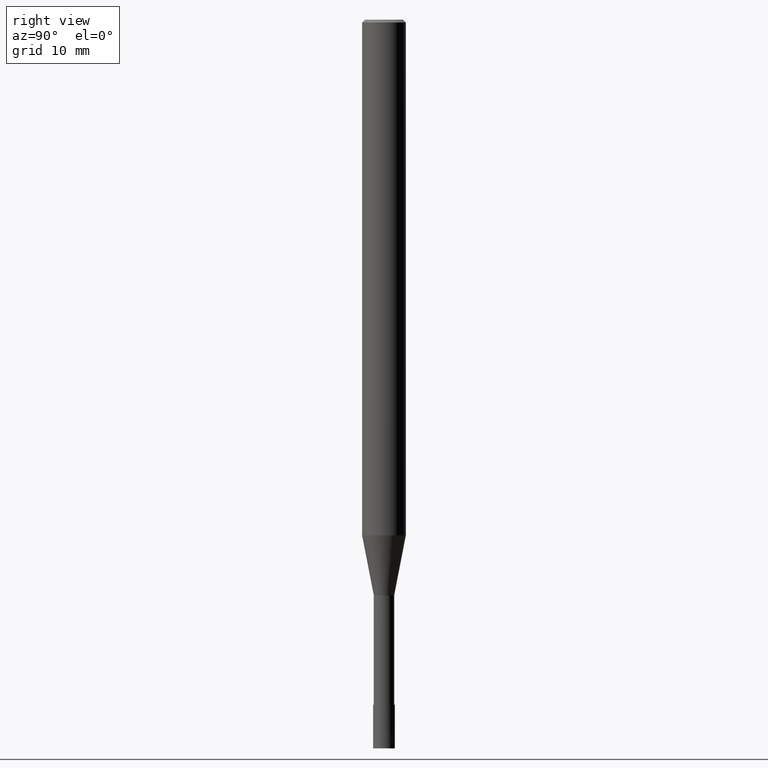
[diagram: clean part render]
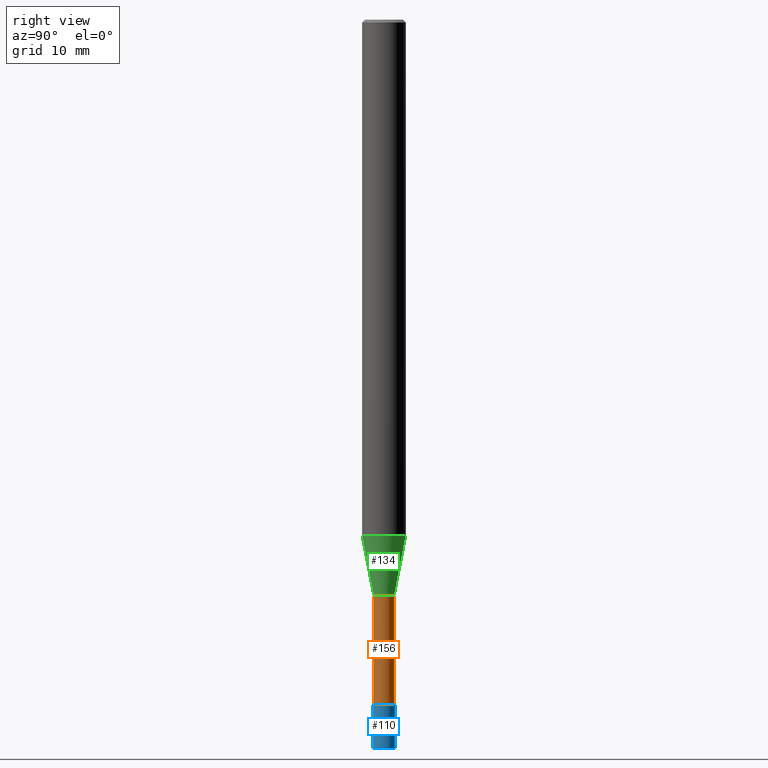
[diagram: same view with three faces highlighted in distinct colors, each labeled with its STEP entity id]
A machine part, right view with three faces highlighted in distinct colors.
Their STEP definitions:

[orange] entity #156 — the highlighted cylindrical surface (edge-blend (fillet) strip) has radius 1.4 mm, axis along (-0, -0, 1).
#96=VERTEX_POINT('',#234);
#122=EDGE_CURVE('',#96,#194,#265,.T.);
#138=EDGE_CURVE('',#96,#140,#284,.T.);
#140=VERTEX_POINT('',#286);
#148=EDGE_CURVE('',#160,#140,#295,.T.);
#156=ADVANCED_FACE('',(#303),#304,.T.);
#160=VERTEX_POINT('',#308);
#190=EDGE_CURVE('',#194,#160,#342,.T.);
#194=VERTEX_POINT('',#346);
#234=CARTESIAN_POINT('',(0.0,1.39995,-79.0));
#265=LINE('',#415,#416);
#284=CIRCLE('',#440,1.39995);
#286=CARTESIAN_POINT('',(1.71438766503364E-016,-1.39995,-79.0));
#295=LINE('',#454,#455);
#303=FACE_OUTER_BOUND('',#465,.T.);
#304=CYLINDRICAL_SURFACE('',#466,1.39995);
#308=CARTESIAN_POINT('',(1.71438766503364E-016,-1.39995,-94.0));
#342=CIRCLE('',#517,1.39995);
#346=CARTESIAN_POINT('',(0.0,1.39995,-94.0));
#415=CARTESIAN_POINT('',(-1.71438766503364E-016,1.39995,-86.5));
#416=VECTOR('',#593,1.0);
#440=AXIS2_PLACEMENT_3D('',#630,#631,#632);
#454=CARTESIAN_POINT('',(1.71438766503364E-016,-1.39995,-86.5));
#455=VECTOR('',#640,1.0);
#465=EDGE_LOOP('',(#648,#649,#650,#651));
#466=AXIS2_PLACEMENT_3D('',#652,#653,#654);
#517=AXIS2_PLACEMENT_3D('',#692,#693,#694);
#593=DIRECTION('',(0.0,0.0,-1.0));
#630=CARTESIAN_POINT('',(0.0,0.0,-79.0));
#631=DIRECTION('',(0.0,0.0,-1.0));
#632=DIRECTION('',(0.0,1.0,0.0));
#640=DIRECTION('',(-0.0,-0.0,1.0));
#648=ORIENTED_EDGE('',*,*,#122,.F.);
#649=ORIENTED_EDGE('',*,*,#138,.T.);
#650=ORIENTED_EDGE('',*,*,#148,.F.);
#651=ORIENTED_EDGE('',*,*,#190,.F.);
#652=CARTESIAN_POINT('',(0.0,0.0,-86.5));
#653=DIRECTION('',(-0.0,-0.0,1.0));
#654=DIRECTION('',(0.0,1.0,0.0));
#692=CARTESIAN_POINT('',(0.0,0.0,-94.0));
#693=DIRECTION('',(0.0,0.0,-1.0));
#694=DIRECTION('',(0.0,1.0,0.0));

[blue] entity #110 — the highlighted conical surface has half-angle 0.001 deg.
#110=ADVANCED_FACE('',(#251),#252,.T.);
#116=VERTEX_POINT('',#259);
#118=VERTEX_POINT('',#261);
#126=EDGE_CURVE('',#150,#116,#269,.T.);
#128=EDGE_CURVE('',#168,#118,#271,.T.);
#146=EDGE_CURVE('',#168,#150,#293,.T.);
#150=VERTEX_POINT('',#297);
#168=VERTEX_POINT('',#316);
#170=EDGE_CURVE('',#116,#118,#318,.T.);
#251=FACE_OUTER_BOUND('',#399,.T.);
#252=CONICAL_SURFACE('',#400,1.49995,1.66666666651216E-005);
#259=CARTESIAN_POINT('',(1.83690953073357E-016,-1.5,-100.0));
#261=CARTESIAN_POINT('',(1.83678707009818E-016,-1.4999,-94.0));
#269=CIRCLE('',#422,1.5);
#271=CIRCLE('',#425,1.4999);
#293=LINE('',#450,#451);
#297=CARTESIAN_POINT('',(0.0,1.5,-100.0));
#316=CARTESIAN_POINT('',(0.0,1.4999,-94.0));
#318=LINE('',#483,#484);
#399=EDGE_LOOP('',(#575,#576,#577,#578));
#400=AXIS2_PLACEMENT_3D('',#579,#580,#581);
#422=AXIS2_PLACEMENT_3D('',#597,#598,#599);
#425=AXIS2_PLACEMENT_3D('',#600,#601,#602);
#450=CARTESIAN_POINT('',(-1.83684830041587E-016,1.49995,-97.0));
#451=VECTOR('',#639,1.0);
#483=CARTESIAN_POINT('',(1.83684830041587E-016,-1.49995,-97.0));
#484=VECTOR('',#660,1.0);
#575=ORIENTED_EDGE('',*,*,#146,.F.);
#576=ORIENTED_EDGE('',*,*,#128,.T.);
#577=ORIENTED_EDGE('',*,*,#170,.F.);
#578=ORIENTED_EDGE('',*,*,#126,.F.);
#579=CARTESIAN_POINT('',(0.0,0.0,-97.0));
#580=DIRECTION('',(0.0,-0.0,-1.0));
#581=DIRECTION('',(0.0,1.0,0.0));
#597=CARTESIAN_POINT('',(0.0,0.0,-100.0));
#598=DIRECTION('',(0.0,0.0,-1.0));
#599=DIRECTION('',(0.0,1.0,0.0));
#600=CARTESIAN_POINT('',(0.0,0.0,-94.0));
#601=DIRECTION('',(0.0,0.0,-1.0));
#602=DIRECTION('',(0.0,1.0,0.0));
#639=DIRECTION('',(-2.04101058942026E-021,1.666666666435E-005,-0.999999999861111));
#660=DIRECTION('',(-2.04101058942026E-021,1.666666666435E-005,0.999999999861111));

[green] entity #134 — the highlighted conical surface has half-angle 11 deg.
#96=VERTEX_POINT('',#234);
#112=VERTEX_POINT('',#254);
#120=EDGE_CURVE('',#204,#112,#263,.T.);
#134=ADVANCED_FACE('',(#278),#279,.T.);
#138=EDGE_CURVE('',#96,#140,#284,.T.);
#140=VERTEX_POINT('',#286);
#166=EDGE_CURVE('',#204,#96,#314,.T.);
#178=EDGE_CURVE('',#140,#112,#327,.T.);
#204=VERTEX_POINT('',#357);
#234=CARTESIAN_POINT('',(0.0,1.39995,-79.0));
#254=CARTESIAN_POINT('',(3.67375783114944E-016,-2.99995,-70.769));
#263=CIRCLE('',#412,2.99995);
#278=FACE_OUTER_BOUND('',#433,.T.);
#279=CONICAL_SURFACE('',#434,2.19995,0.191992735564386);
#284=CIRCLE('',#440,1.39995);
#286=CARTESIAN_POINT('',(1.71438766503364E-016,-1.39995,-79.0));
#314=LINE('',#477,#478);
#327=LINE('',#495,#496);
#357=CARTESIAN_POINT('',(0.0,2.99995,-70.769));
#412=AXIS2_PLACEMENT_3D('',#590,#591,#592);
#433=EDGE_LOOP('',(#615,#616,#617,#618));
#434=AXIS2_PLACEMENT_3D('',#619,#620,#621);
#440=AXIS2_PLACEMENT_3D('',#630,#631,#632);
#477=CARTESIAN_POINT('',(-2.69407274809154E-016,2.19995,-74.8845));
#478=VECTOR('',#659,1.0);
#495=CARTESIAN_POINT('',(2.69407274809154E-016,-2.19995,-74.8845));
#496=VECTOR('',#670,1.0);
#590=CARTESIAN_POINT('',(0.0,0.0,-70.769));
#591=DIRECTION('',(0.0,0.0,-1.0));
#592=DIRECTION('',(0.0,1.0,0.0));
#615=ORIENTED_EDGE('',*,*,#166,.F.);
#616=ORIENTED_EDGE('',*,*,#120,.T.);
#617=ORIENTED_EDGE('',*,*,#178,.F.);
#618=ORIENTED_EDGE('',*,*,#138,.F.);
#619=CARTESIAN_POINT('',(0.0,0.0,-74.8845));
#620=DIRECTION('',(-0.0,-0.0,1.0));
#621=DIRECTION('',(0.0,1.0,0.0));
#630=CARTESIAN_POINT('',(0.0,0.0,-79.0));
#631=DIRECTION('',(0.0,0.0,-1.0));
#632=DIRECTION('',(0.0,1.0,0.0));
#659=DIRECTION('',(2.33673743245985E-017,-0.190815393466331,-0.981625939763355));
#670=DIRECTION('',(2.33673743245985E-017,-0.190815393466331,0.981625939763355));